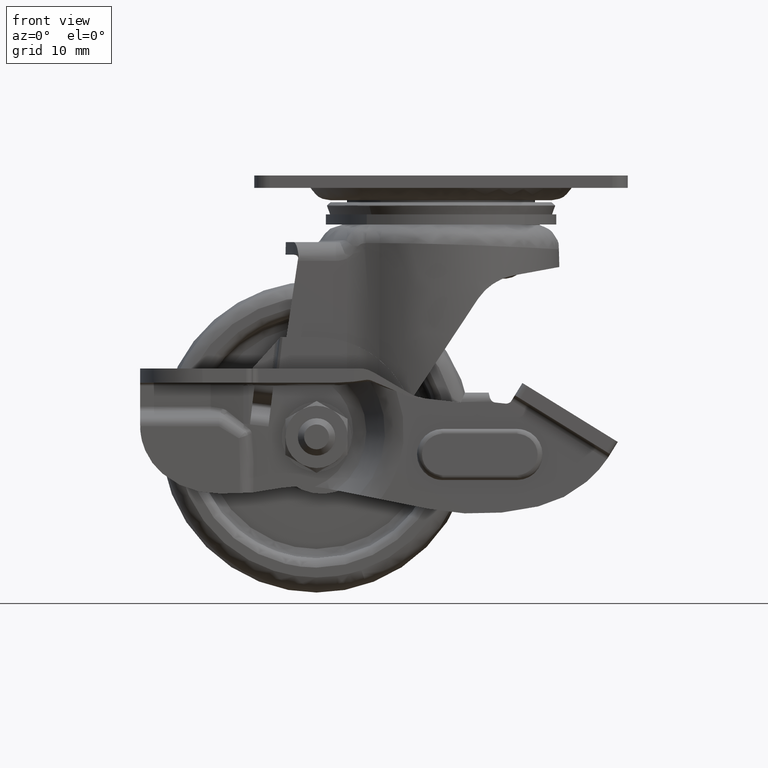
[diagram: clean part render]
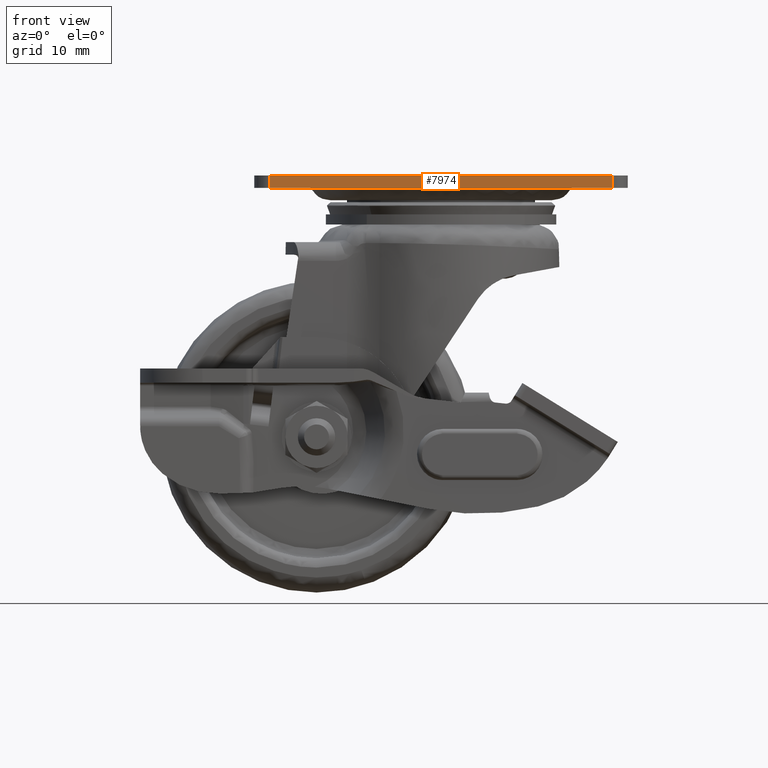
[diagram: same view with one face highlighted and labeled with its STEP entity id]
A machine part, front view. The second image highlights one B-rep face of the part: STEP entity #7974.
In plain terms, the highlighted face is a freeform B-spline surface patch.
Its self-contained STEP definition (entity closure, byte-faithful):
#7701=CARTESIAN_POINT('',(-27.500007000000100,-21.0,0.0));
#7702=VERTEX_POINT('',#7701);
#7715=CARTESIAN_POINT('',(27.499993000000000,-21.0,0.0));
#7716=VERTEX_POINT('',#7715);
#7717=CARTESIAN_POINT('',(-27.500007000000100,-21.0,0.0));
#7718=CARTESIAN_POINT('',(27.499993000000000,-21.0,0.0));
#7719=QUASI_UNIFORM_CURVE('',1,(#7717,#7718),.UNSPECIFIED.,.F.,.U.);
#7720=EDGE_CURVE('',#7702,#7716,#7719,.T.);
#7811=CARTESIAN_POINT('',(27.499993000000000,-21.0,-1.999963000000160));
#7812=VERTEX_POINT('',#7811);
#7825=CARTESIAN_POINT('',(-27.500007000000100,-21.0,-1.999963000000160));
#7826=VERTEX_POINT('',#7825);
#7827=CARTESIAN_POINT('',(-27.500007000000100,-21.0,-1.999963000000160));
#7828=CARTESIAN_POINT('',(27.499993000000000,-21.0,-1.999963000000160));
#7829=QUASI_UNIFORM_CURVE('',1,(#7827,#7828),.UNSPECIFIED.,.F.,.U.);
#7830=EDGE_CURVE('',#7826,#7812,#7829,.T.);
#7949=CARTESIAN_POINT('',(27.499993000000000,-21.0,-1.999963000000160));
#7950=CARTESIAN_POINT('',(27.499993000000000,-21.0,0.0));
#7951=QUASI_UNIFORM_CURVE('',1,(#7949,#7950),.UNSPECIFIED.,.F.,.U.);
#7952=EDGE_CURVE('',#7812,#7716,#7951,.T.);
#7959=CARTESIAN_POINT('',(-30.247257926000739,-21.0,0.099898147973692));
#7960=CARTESIAN_POINT('',(-30.247257926000739,-21.0,-2.099861201617040));
#7961=CARTESIAN_POINT('',(30.247244417738951,-21.0,0.099898147973692));
#7962=CARTESIAN_POINT('',(30.247244417738951,-21.0,-2.099861201617040));
#7963=B_SPLINE_SURFACE_WITH_KNOTS('',1,1,((#7959,#7961),(#7960,#7962)),.UNSPECIFIED.,.F.,.F.,.U.,(2,2),(2,2),(0.0,2.199759349590731),(0.0,60.494502343739683),.UNSPECIFIED.);
#7964=ORIENTED_EDGE('',*,*,#7720,.F.);
#7965=CARTESIAN_POINT('',(-27.500007000000100,-21.0,-1.999963000000160));
#7966=CARTESIAN_POINT('',(-27.500007000000100,-21.0,0.0));
#7967=QUASI_UNIFORM_CURVE('',1,(#7965,#7966),.UNSPECIFIED.,.F.,.U.);
#7968=EDGE_CURVE('',#7826,#7702,#7967,.T.);
#7969=ORIENTED_EDGE('',*,*,#7968,.F.);
#7970=ORIENTED_EDGE('',*,*,#7830,.T.);
#7971=ORIENTED_EDGE('',*,*,#7952,.T.);
#7972=EDGE_LOOP('',(#7964,#7969,#7970,#7971));
#7973=FACE_OUTER_BOUND('',#7972,.T.);
#7974=ADVANCED_FACE('',(#7973),#7963,.T.);